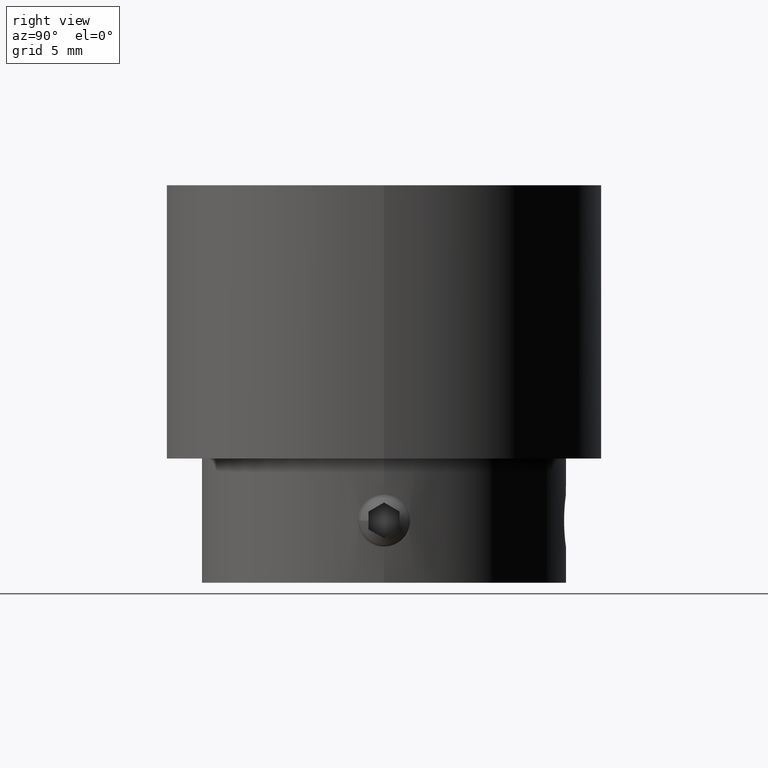
[diagram: clean part render]
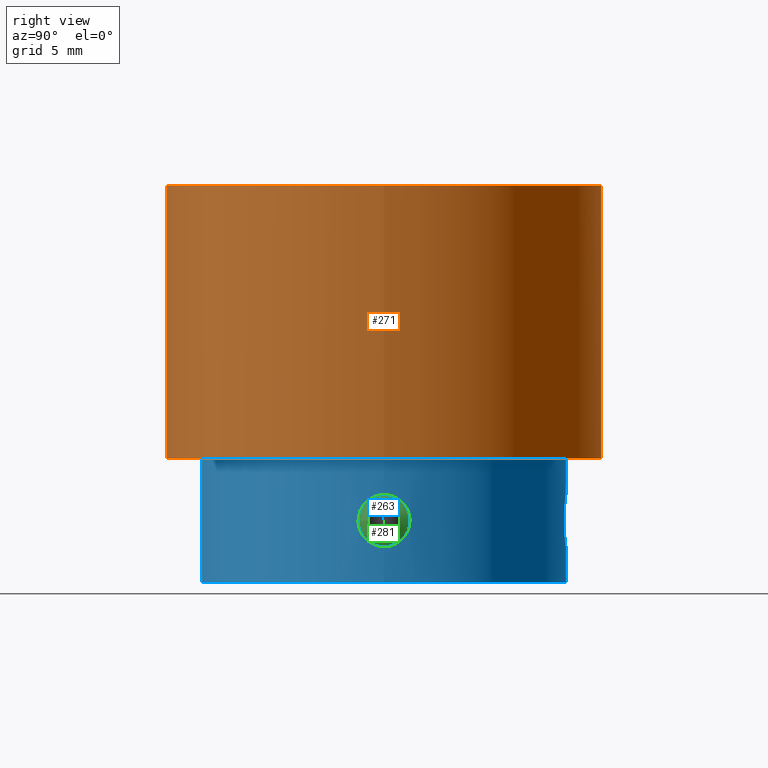
[diagram: same view with three faces highlighted in distinct colors, each labeled with its STEP entity id]
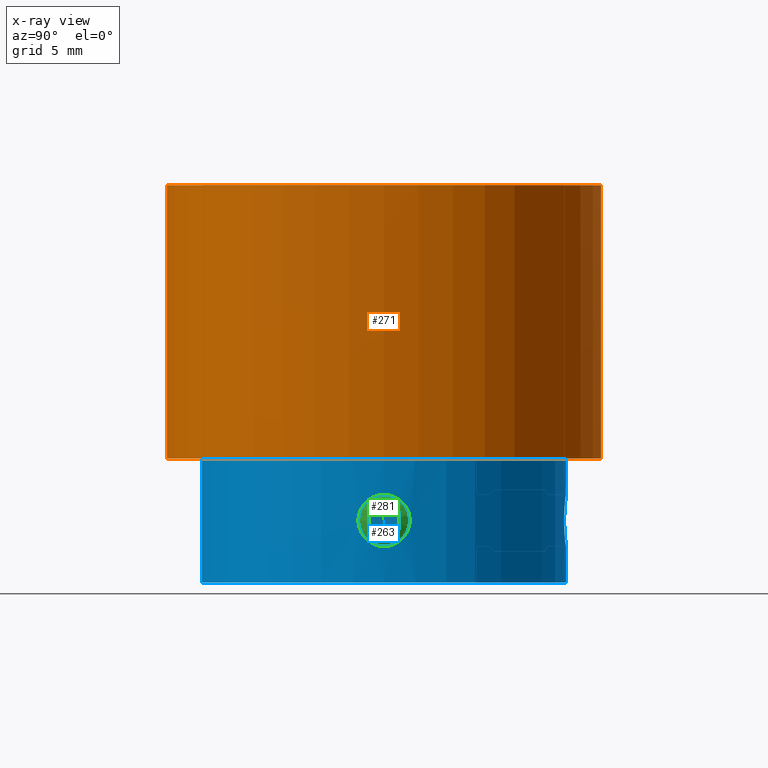
[diagram: x-ray of the same camera — body ghosted, the three highlighted faces saturated]
A machine part, right view with three faces highlighted in distinct colors.
The next image is the same camera in x-ray (body ghosted, the three faces saturated) — at least one of them is partly hidden behind the body in this view.
Their STEP definitions:

[orange] entity #271 — the highlighted cylindrical surface (bore or boss wall) has radius 17.5 mm, axis along (-0, 0, -1).
#271 = ADVANCED_FACE( '', ( #332, #333 ), #334, .T. );
#332 = FACE_OUTER_BOUND( '', #424, .T. );
#333 = FACE_OUTER_BOUND( '', #425, .T. );
#334 = CYLINDRICAL_SURFACE( '', #426, 17.5000000000000 );
#424 = EDGE_LOOP( '', ( #532 ) );
#425 = EDGE_LOOP( '', ( #533 ) );
#426 = AXIS2_PLACEMENT_3D( '', #534, #535, #536 );
#532 = ORIENTED_EDGE( '', *, *, #714, .T. );
#533 = ORIENTED_EDGE( '', *, *, #715, .F. );
#534 = CARTESIAN_POINT( '', ( 0.000000000000000, 0.000000000000000, -22.0000000000000 ) );
#535 = DIRECTION( '', ( -0.000000000000000, 0.000000000000000, -1.00000000000000 ) );
#536 = DIRECTION( '', ( 1.00000000000000, 0.000000000000000, 0.000000000000000 ) );
#714 = EDGE_CURVE( '', #782, #782, #783, .T. );
#715 = EDGE_CURVE( '', #784, #784, #785, .T. );
#782 = VERTEX_POINT( '', #1106 );
#783 = CIRCLE( '', #1107, 17.5000000000000 );
#784 = VERTEX_POINT( '', #1108 );
#785 = CIRCLE( '', #1109, 17.5000000000000 );
#1106 = CARTESIAN_POINT( '', ( 17.5000000000000, 0.000000000000000, -22.0000000000000 ) );
#1107 = AXIS2_PLACEMENT_3D( '', #1288, #1289, #1290 );
#1108 = CARTESIAN_POINT( '', ( 17.5000000000000, 0.000000000000000, 0.000000000000000 ) );
#1109 = AXIS2_PLACEMENT_3D( '', #1291, #1292, #1293 );
#1288 = CARTESIAN_POINT( '', ( 0.000000000000000, 0.000000000000000, -22.0000000000000 ) );
#1289 = DIRECTION( '', ( 0.000000000000000, 0.000000000000000, 1.00000000000000 ) );
#1290 = DIRECTION( '', ( 1.00000000000000, 0.000000000000000, 0.000000000000000 ) );
#1291 = CARTESIAN_POINT( '', ( 0.000000000000000, 0.000000000000000, 0.000000000000000 ) );
#1292 = DIRECTION( '', ( 0.000000000000000, 0.000000000000000, 1.00000000000000 ) );
#1293 = DIRECTION( '', ( 1.00000000000000, 0.000000000000000, 0.000000000000000 ) );

[blue] entity #263 — the highlighted cylindrical surface (bore or boss wall) has radius 14.65 mm, axis along (-0, 0, -1).
#263 = ADVANCED_FACE( '', ( #304, #305, #306, #307 ), #308, .T. );
#304 = FACE_BOUND( '', #396, .T. );
#305 = FACE_OUTER_BOUND( '', #397, .T. );
#306 = FACE_BOUND( '', #398, .T. );
#307 = FACE_OUTER_BOUND( '', #399, .T. );
#308 = CYLINDRICAL_SURFACE( '', #400, 14.6500000000000 );
#396 = EDGE_LOOP( '', ( #488 ) );
#397 = EDGE_LOOP( '', ( #489 ) );
#398 = EDGE_LOOP( '', ( #490 ) );
#399 = EDGE_LOOP( '', ( #491 ) );
#400 = AXIS2_PLACEMENT_3D( '', #492, #493, #494 );
#488 = ORIENTED_EDGE( '', *, *, #704, .F. );
#489 = ORIENTED_EDGE( '', *, *, #705, .T. );
#490 = ORIENTED_EDGE( '', *, *, #706, .F. );
#491 = ORIENTED_EDGE( '', *, *, #707, .T. );
#492 = CARTESIAN_POINT( '', ( 0.000000000000000, 0.000000000000000, -32.0000000000000 ) );
#493 = DIRECTION( '', ( -0.000000000000000, 0.000000000000000, -1.00000000000000 ) );
#494 = DIRECTION( '', ( 1.00000000000000, 0.000000000000000, 0.000000000000000 ) );
#704 = EDGE_CURVE( '', #762, #762, #763, .T. );
#705 = EDGE_CURVE( '', #764, #764, #765, .T. );
#706 = EDGE_CURVE( '', #766, #766, #767, .T. );
#707 = EDGE_CURVE( '', #768, #768, #769, .F. );
#762 = VERTEX_POINT( '', #862 );
#763 = B_SPLINE_CURVE_WITH_KNOTS( '', 3, ( #863, #864, #865, #866, #867, #868, #869, #870, #871, #872, #873, #874, #875, #876, #877, #878, #879, #880, #881, #882, #883, #884, #885, #886, #887, #888, #889, #890, #891, #892, #893, #894, #895, #896, #897, #898, #899, #900, #901, #902, #903, #904, #905, #906, #907, #908, #909, #910, #911, #912, #913, #914, #915, #916, #917, #918 ), .UNSPECIFIED., .T., .F., ( 2, 2, 2, 2, 2, 2, 2, 2, 2, 2, 2, 2, 2, 2, 2, 2, 2, 2, 2, 2, 2, 2, 2, 2, 2, 2, 2, 2, 2, 2 ), ( -0.000821676350584550, 0.000000000000000, 0.000410838175292270, 0.000821676350584540, 0.00123251452587681, 0.00164335270116908, 0.00246502905175362, 0.00328670540233816, 0.00369754357763043, 0.00410838175292270, 0.00451921992821497, 0.00493005810350724, 0.00534089627879951, 0.00575173445409178, 0.00616257262938405, 0.00657341080467632, 0.00739508715526086, 0.00780592533055314, 0.00821676350584541, 0.00862760168113768, 0.00903843985642995, 0.00944927803172222, 0.00986011620701449, 0.0102709543823068, 0.0106817925575990, 0.0110926307328913, 0.0115034689081836, 0.0123251452587681, 0.0131468216093527, 0.0135576597846449 ), .UNSPECIFIED. );
#764 = VERTEX_POINT( '', #919 );
#765 = CIRCLE( '', #920, 14.6500000000000 );
#766 = VERTEX_POINT( '', #921 );
#767 = B_SPLINE_CURVE_WITH_KNOTS( '', 3, ( #922, #923, #924, #925, #926, #927, #928, #929, #930, #931, #932, #933, #934, #935, #936, #937, #938, #939, #940, #941, #942, #943, #944, #945, #946, #947, #948, #949, #950, #951, #952, #953, #954, #955, #956, #957, #958, #959, #960, #961, #962, #963, #964, #965, #966, #967, #968, #969, #970, #971, #972, #973, #974, #975, #976, #977 ), .UNSPECIFIED., .T., .F., ( 2, 2, 2, 2, 2, 2, 2, 2, 2, 2, 2, 2, 2, 2, 2, 2, 2, 2, 2, 2, 2, 2, 2, 2, 2, 2, 2, 2, 2, 2 ), ( -0.000821676350584553, 0.000000000000000, 0.000410838175292266, 0.000821676350584532, 0.00123251452587680, 0.00164335270116906, 0.00246502905175360, 0.00328670540233813, 0.00369754357763040, 0.00410838175292267, 0.00451921992821494, 0.00493005810350722, 0.00534089627879949, 0.00575173445409176, 0.00616257262938403, 0.00657341080467630, 0.00739508715526085, 0.00780592533055312, 0.00821676350584539, 0.00862760168113766, 0.00903843985642993, 0.00944927803172220, 0.00986011620701448, 0.0102709543823067, 0.0106817925575990, 0.0110926307328913, 0.0115034689081836, 0.0123251452587681, 0.0131468216093527, 0.0135576597846449 ), .UNSPECIFIED. );
#768 = VERTEX_POINT( '', #978 );
#769 = CIRCLE( '', #979, 14.6500000000000 );
#862 = CARTESIAN_POINT( '', ( -0.243478406430909, 14.6479765928814, -24.9141624546475 ) );
#863 = CARTESIAN_POINT( '', ( -0.519418364710327, 14.6433899238021, -24.9463727394141 ) );
#864 = CARTESIAN_POINT( '', ( -0.105508427291202, 14.6502699274211, -24.8980573122643 ) );
#865 = CARTESIAN_POINT( '', ( 0.0317397346344909, 14.6506021199626, -24.8957755457430 ) );
#866 = CARTESIAN_POINT( '', ( 0.304850898942806, 14.6474644842587, -24.9177334718962 ) );
#867 = CARTESIAN_POINT( '', ( 0.442197359134204, 14.6439245500962, -24.9424726951000 ) );
#868 = CARTESIAN_POINT( '', ( 0.707057397646882, 14.6335277554583, -25.0178226741113 ) );
#869 = CARTESIAN_POINT( '', ( 0.834337503996029, 14.6267349898457, -25.0679747872220 ) );
#870 = CARTESIAN_POINT( '', ( 1.07872740959252, 14.6107440847325, -25.1930169704233 ) );
#871 = CARTESIAN_POINT( '', ( 1.19615882141795, 14.6014828669101, -25.2685496164717 ) );
#872 = CARTESIAN_POINT( '', ( 1.51795734395931, 14.5727381386209, -25.5232905063535 ) );
#873 = CARTESIAN_POINT( '', ( 1.70028944801077, 14.5516169365638, -25.7375698224308 ) );
#874 = CARTESIAN_POINT( '', ( 1.96680097547192, 14.5179968865677, -26.2148833951973 ) );
#875 = CARTESIAN_POINT( '', ( 2.05375641781997, 14.5053654337650, -26.4829811950649 ) );
#876 = CARTESIAN_POINT( '', ( 2.10167842108939, 14.4984726182459, -26.8915851420446 ) );
#877 = CARTESIAN_POINT( '', ( 2.10425247930975, 14.4980945518212, -27.0315952989257 ) );
#878 = CARTESIAN_POINT( '', ( 2.08219835797159, 14.5012783618648, -27.3054942841623 ) );
#879 = CARTESIAN_POINT( '', ( 2.05795019636429, 14.5047847598242, -27.4402567247901 ) );
#880 = CARTESIAN_POINT( '', ( 1.98278229079199, 14.5152510941722, -27.7053788923411 ) );
#881 = CARTESIAN_POINT( '', ( 1.93173107023037, 14.5222195949914, -27.8349386695447 ) );
#882 = CARTESIAN_POINT( '', ( 1.80710964418293, 14.5382530459043, -28.0784536353017 ) );
#883 = CARTESIAN_POINT( '', ( 1.73298386881928, 14.5473960510101, -28.1941194972935 ) );
#884 = CARTESIAN_POINT( '', ( 1.56127958764008, 14.5668243280321, -28.4112265986094 ) );
#885 = CARTESIAN_POINT( '', ( 1.46618019280933, 14.5768217899481, -28.5096358634330 ) );
#886 = CARTESIAN_POINT( '', ( 1.25810840185989, 14.5962522964925, -28.6869641511067 ) );
#887 = CARTESIAN_POINT( '', ( 1.14372449177842, 14.6057819254927, -28.7665740856300 ) );
#888 = CARTESIAN_POINT( '', ( 0.903718623746249, 14.6225942984560, -28.9005742190736 ) );
#889 = CARTESIAN_POINT( '', ( 0.778395101863427, 14.6298907933326, -28.9552406531888 ) );
#890 = CARTESIAN_POINT( '', ( 0.517089737823087, 14.6414555889256, -29.0399713599767 ) );
#891 = CARTESIAN_POINT( '', ( 0.380402973195521, 14.6456934817792, -29.0698035243122 ) );
#892 = CARTESIAN_POINT( '', ( -0.0280691412506341, 14.6525044978767, -29.1176364958120 ) );
#893 = CARTESIAN_POINT( '', ( -0.309383957449192, 14.6491039570944, -29.0950452108861 ) );
#894 = CARTESIAN_POINT( '', ( -0.704425427493390, 14.6336479085641, -28.9830577486036 ) );
#895 = CARTESIAN_POINT( '', ( -0.833603625909540, 14.6267818831057, -28.9323896417995 ) );
#896 = CARTESIAN_POINT( '', ( -1.07919452186856, 14.6107146452542, -28.8067550793709 ) );
#897 = CARTESIAN_POINT( '', ( -1.19421785315003, 14.6016430815121, -28.7327988702013 ) );
#898 = CARTESIAN_POINT( '', ( -1.40911404048712, 14.5824735412602, -28.5630565652769 ) );
#899 = CARTESIAN_POINT( '', ( -1.50967863345884, 14.5722804351165, -28.4661630135471 ) );
#900 = CARTESIAN_POINT( '', ( -1.68734763786873, 14.5527778999399, -28.2576253446851 ) );
#901 = CARTESIAN_POINT( '', ( -1.76544861792705, 14.5433930683319, -28.1454898091186 ) );
#902 = CARTESIAN_POINT( '', ( -1.89989445048148, 14.5264411278046, -27.9051832976612 ) );
#903 = CARTESIAN_POINT( '', ( -1.95549701017002, 14.5189650063005, -27.7776574737393 ) );
#904 = CARTESIAN_POINT( '', ( -2.03986980178060, 14.5073513986098, -27.5173498768049 ) );
#905 = CARTESIAN_POINT( '', ( -2.06943123725237, 14.5031107804122, -27.3830243392548 ) );
#906 = CARTESIAN_POINT( '', ( -2.10183641243854, 14.4984499740480, -27.1074103604170 ) );
#907 = CARTESIAN_POINT( '', ( -2.10425426869887, 14.4980941585357, -26.9702274352413 ) );
#908 = CARTESIAN_POINT( '', ( -2.08254697933814, 14.5012281664676, -26.6970635185400 ) );
#909 = CARTESIAN_POINT( '', ( -2.05790365498903, 14.5047912325208, -26.5595816913224 ) );
#910 = CARTESIAN_POINT( '', ( -1.98283466956351, 14.5152438086795, -26.2948032806283 ) );
#911 = CARTESIAN_POINT( '', ( -1.93281118596845, 14.5220764735504, -26.1674720128793 ) );
#912 = CARTESIAN_POINT( '', ( -1.80791811846585, 14.5381531241480, -25.9228305579590 ) );
#913 = CARTESIAN_POINT( '', ( -1.73252381881398, 14.5474445468402, -25.8054009324820 ) );
#914 = CARTESIAN_POINT( '', ( -1.47815084997175, 14.5762373941055, -25.4834602134402 ) );
#915 = CARTESIAN_POINT( '', ( -1.26401065179807, 14.5973272921311, -25.3008819653575 ) );
#916 = CARTESIAN_POINT( '', ( -0.786907696629095, 14.6308052846875, -25.0339121839317 ) );
#917 = CARTESIAN_POINT( '', ( -0.519418364710327, 14.6433899238021, -24.9463727394141 ) );
#918 = CARTESIAN_POINT( '', ( -0.105508427291202, 14.6502699274211, -24.8980573122643 ) );
#919 = CARTESIAN_POINT( '', ( 14.6500000000000, 0.000000000000000, -32.0000000000000 ) );
#920 = AXIS2_PLACEMENT_3D( '', #1270, #1271, #1272 );
#921 = CARTESIAN_POINT( '', ( 14.6479765928814, 0.243478406430910, -24.9141624546475 ) );
#922 = CARTESIAN_POINT( '', ( 14.6433899238021, 0.519418364710332, -24.9463727394140 ) );
#923 = CARTESIAN_POINT( '', ( 14.6502699274211, 0.105508427291203, -24.8980573122643 ) );
#924 = CARTESIAN_POINT( '', ( 14.6506021199626, -0.0317397346344901, -24.8957755457430 ) );
#925 = CARTESIAN_POINT( '', ( 14.6474644842587, -0.304850898942805, -24.9177334718962 ) );
#926 = CARTESIAN_POINT( '', ( 14.6439245500962, -0.442197359134203, -24.9424726951000 ) );
#927 = CARTESIAN_POINT( '', ( 14.6335277554583, -0.707057397646881, -25.0178226741113 ) );
#928 = CARTESIAN_POINT( '', ( 14.6267349898457, -0.834337503996028, -25.0679747872220 ) );
#929 = CARTESIAN_POINT( '', ( 14.6107440847325, -1.07872740959252, -25.1930169704233 ) );
#930 = CARTESIAN_POINT( '', ( 14.6014828669101, -1.19615882141795, -25.2685496164717 ) );
#931 = CARTESIAN_POINT( '', ( 14.5727381386209, -1.51795734395931, -25.5232905063535 ) );
#932 = CARTESIAN_POINT( '', ( 14.5516169365638, -1.70028944801077, -25.7375698224308 ) );
#933 = CARTESIAN_POINT( '', ( 14.5179968865677, -1.96680097547192, -26.2148833951973 ) );
#934 = CARTESIAN_POINT( '', ( 14.5053654337650, -2.05375641781997, -26.4829811950649 ) );
#935 = CARTESIAN_POINT( '', ( 14.4984726182459, -2.10167842108939, -26.8915851420446 ) );
#936 = CARTESIAN_POINT( '', ( 14.4980945518212, -2.10425247930975, -27.0315952989257 ) );
#937 = CARTESIAN_POINT( '', ( 14.5012783618648, -2.08219835797159, -27.3054942841623 ) );
#938 = CARTESIAN_POINT( '', ( 14.5047847598242, -2.05795019636429, -27.4402567247901 ) );
#939 = CARTESIAN_POINT( '', ( 14.5152510941722, -1.98278229079199, -27.7053788923412 ) );
#940 = CARTESIAN_POINT( '', ( 14.5222195949914, -1.93173107023036, -27.8349386695447 ) );
#941 = CARTESIAN_POINT( '', ( 14.5382530459043, -1.80710964418292, -28.0784536353017 ) );
#942 = CARTESIAN_POINT( '', ( 14.5473960510101, -1.73298386881928, -28.1941194972935 ) );
#943 = CARTESIAN_POINT( '', ( 14.5668243280322, -1.56127958764008, -28.4112265986094 ) );
#944 = CARTESIAN_POINT( '', ( 14.5768217899481, -1.46618019280932, -28.5096358634330 ) );
#945 = CARTESIAN_POINT( '', ( 14.5962522964925, -1.25810840185989, -28.6869641511067 ) );
#946 = CARTESIAN_POINT( '', ( 14.6057819254927, -1.14372449177842, -28.7665740856300 ) );
#947 = CARTESIAN_POINT( '', ( 14.6225942984560, -0.903718623746248, -28.9005742190736 ) );
#948 = CARTESIAN_POINT( '', ( 14.6298907933326, -0.778395101863425, -28.9552406531888 ) );
#949 = CARTESIAN_POINT( '', ( 14.6414555889256, -0.517089737823086, -29.0399713599767 ) );
#950 = CARTESIAN_POINT( '', ( 14.6456934817792, -0.380402973195520, -29.0698035243122 ) );
#951 = CARTESIAN_POINT( '', ( 14.6525044978767, 0.0280691412506365, -29.1176364958120 ) );
#952 = CARTESIAN_POINT( '', ( 14.6491039570944, 0.309383957449193, -29.0950452108861 ) );
#953 = CARTESIAN_POINT( '', ( 14.6336479085641, 0.704425427493392, -28.9830577486036 ) );
#954 = CARTESIAN_POINT( '', ( 14.6267818831057, 0.833603625909542, -28.9323896417995 ) );
#955 = CARTESIAN_POINT( '', ( 14.6107146452542, 1.07919452186856, -28.8067550793709 ) );
#956 = CARTESIAN_POINT( '', ( 14.6016430815121, 1.19421785315003, -28.7327988702013 ) );
#957 = CARTESIAN_POINT( '', ( 14.5824735412602, 1.40911404048713, -28.5630565652769 ) );
#958 = CARTESIAN_POINT( '', ( 14.5722804351165, 1.50967863345884, -28.4661630135471 ) );
#959 = CARTESIAN_POINT( '', ( 14.5527778999399, 1.68734763786873, -28.2576253446851 ) );
#960 = CARTESIAN_POINT( '', ( 14.5433930683319, 1.76544861792705, -28.1454898091186 ) );
#961 = CARTESIAN_POINT( '', ( 14.5264411278047, 1.89989445048148, -27.9051832976612 ) );
#962 = CARTESIAN_POINT( '', ( 14.5189650063005, 1.95549701017003, -27.7776574737393 ) );
#963 = CARTESIAN_POINT( '', ( 14.5073513986098, 2.03986980178060, -27.5173498768049 ) );
#964 = CARTESIAN_POINT( '', ( 14.5031107804122, 2.06943123725237, -27.3830243392547 ) );
#965 = CARTESIAN_POINT( '', ( 14.4984499740480, 2.10183641243854, -27.1074103604170 ) );
#966 = CARTESIAN_POINT( '', ( 14.4980941585357, 2.10425426869887, -26.9702274352413 ) );
#967 = CARTESIAN_POINT( '', ( 14.5012281664676, 2.08254697933814, -26.6970635185400 ) );
#968 = CARTESIAN_POINT( '', ( 14.5047912325208, 2.05790365498903, -26.5595816913224 ) );
#969 = CARTESIAN_POINT( '', ( 14.5152438086795, 1.98283466956351, -26.2948032806283 ) );
#970 = CARTESIAN_POINT( '', ( 14.5220764735504, 1.93281118596845, -26.1674720128793 ) );
#971 = CARTESIAN_POINT( '', ( 14.5381531241480, 1.80791811846585, -25.9228305579590 ) );
#972 = CARTESIAN_POINT( '', ( 14.5474445468402, 1.73252381881398, -25.8054009324820 ) );
#973 = CARTESIAN_POINT( '', ( 14.5762373941055, 1.47815084997175, -25.4834602134402 ) );
#974 = CARTESIAN_POINT( '', ( 14.5973272921311, 1.26401065179807, -25.3008819653575 ) );
#975 = CARTESIAN_POINT( '', ( 14.6308052846875, 0.786907696629094, -25.0339121839317 ) );
#976 = CARTESIAN_POINT( '', ( 14.6433899238021, 0.519418364710332, -24.9463727394140 ) );
#977 = CARTESIAN_POINT( '', ( 14.6502699274211, 0.105508427291203, -24.8980573122643 ) );
#978 = CARTESIAN_POINT( '', ( 14.6500000000000, 0.000000000000000, -22.0000000000000 ) );
#979 = AXIS2_PLACEMENT_3D( '', #1273, #1274, #1275 );
#1270 = CARTESIAN_POINT( '', ( 0.000000000000000, 0.000000000000000, -32.0000000000000 ) );
#1271 = DIRECTION( '', ( 0.000000000000000, 0.000000000000000, 1.00000000000000 ) );
#1272 = DIRECTION( '', ( 1.00000000000000, 0.000000000000000, -0.000000000000000 ) );
#1273 = CARTESIAN_POINT( '', ( 0.000000000000000, 0.000000000000000, -22.0000000000000 ) );
#1274 = DIRECTION( '', ( 0.000000000000000, 0.000000000000000, 1.00000000000000 ) );
#1275 = DIRECTION( '', ( 1.00000000000000, 0.000000000000000, -0.000000000000000 ) );

[green] entity #281 — the highlighted conical surface has half-angle 63.435 deg.
#281 = ADVANCED_FACE( '', ( #344, #345 ), #346, .T. );
#344 = FACE_OUTER_BOUND( '', #436, .T. );
#345 = FACE_BOUND( '', #437, .T. );
#346 = CONICAL_SURFACE( '', #438, 2.50000000000000, 1.10714871779409 );
#436 = EDGE_LOOP( '', ( #552 ) );
#437 = EDGE_LOOP( '', ( #553, #554, #555, #556, #557, #558 ) );
#438 = AXIS2_PLACEMENT_3D( '', #559, #560, #561 );
#552 = ORIENTED_EDGE( '', *, *, #718, .F. );
#553 = ORIENTED_EDGE( '', *, *, #719, .T. );
#554 = ORIENTED_EDGE( '', *, *, #720, .T. );
#555 = ORIENTED_EDGE( '', *, *, #721, .T. );
#556 = ORIENTED_EDGE( '', *, *, #722, .T. );
#557 = ORIENTED_EDGE( '', *, *, #723, .T. );
#558 = ORIENTED_EDGE( '', *, *, #724, .T. );
#559 = CARTESIAN_POINT( '', ( 13.0870595585078, 0.000000000000000, -27.0000000000000 ) );
#560 = DIRECTION( '', ( -1.00000000000000, -0.000000000000000, -0.000000000000000 ) );
#561 = DIRECTION( '', ( 0.000000000000000, -1.00000000000000, 0.000000000000000 ) );
#718 = EDGE_CURVE( '', #790, #790, #791, .T. );
#719 = EDGE_CURVE( '', #792, #793, #794, .T. );
#720 = EDGE_CURVE( '', #793, #795, #796, .T. );
#721 = EDGE_CURVE( '', #795, #797, #798, .T. );
#722 = EDGE_CURVE( '', #797, #799, #800, .F. );
#723 = EDGE_CURVE( '', #799, #801, #802, .T. );
#724 = EDGE_CURVE( '', #801, #792, #803, .T. );
#790 = VERTEX_POINT( '', #1114 );
#791 = CIRCLE( '', #1115, 2.50000000000000 );
#792 = VERTEX_POINT( '', #1116 );
#793 = VERTEX_POINT( '', #1117 );
#794 = B_SPLINE_CURVE_WITH_KNOTS( '', 3, ( #1118, #1119, #1120, #1121, #1122, #1123 ), .UNSPECIFIED., .F., .F., ( 4, 2, 4 ), ( 0.00129322886666107, 0.00202279493422372, 0.00275236100178638 ), .UNSPECIFIED. );
#795 = VERTEX_POINT( '', #1124 );
#796 = B_SPLINE_CURVE_WITH_KNOTS( '', 3, ( #1125, #1126, #1127, #1128, #1129, #1130 ), .UNSPECIFIED., .F., .F., ( 4, 2, 4 ), ( 2.34956166162920E-007, 0.000723983021226004, 0.00144773108628584 ), .UNSPECIFIED. );
#797 = VERTEX_POINT( '', #1131 );
#798 = B_SPLINE_CURVE_WITH_KNOTS( '', 3, ( #1132, #1133, #1134, #1135, #1136, #1137 ), .UNSPECIFIED., .F., .F., ( 4, 2, 4 ), ( 2.34956166162949E-007, 0.000723983021226004, 0.00144773108628585 ), .UNSPECIFIED. );
#799 = VERTEX_POINT( '', #1138 );
#800 = B_SPLINE_CURVE_WITH_KNOTS( '', 3, ( #1139, #1140, #1141, #1142, #1143, #1144 ), .UNSPECIFIED., .F., .F., ( 4, 2, 4 ), ( 0.00129322886666107, 0.00202279493422372, 0.00275236100178638 ), .UNSPECIFIED. );
#801 = VERTEX_POINT( '', #1145 );
#802 = B_SPLINE_CURVE_WITH_KNOTS( '', 3, ( #1146, #1147, #1148, #1149, #1150, #1151 ), .UNSPECIFIED., .F., .F., ( 4, 2, 4 ), ( 2.34956166162920E-007, 0.000723983021226003, 0.00144773108628584 ), .UNSPECIFIED. );
#803 = B_SPLINE_CURVE_WITH_KNOTS( '', 3, ( #1152, #1153, #1154, #1155, #1156, #1157 ), .UNSPECIFIED., .F., .F., ( 4, 2, 4 ), ( 2.34956166162955E-007, 0.000723983021226004, 0.00144773108628584 ), .UNSPECIFIED. );
#1114 = CARTESIAN_POINT( '', ( 13.0870595585078, -2.50000000000000, -27.0000000000000 ) );
#1115 = AXIS2_PLACEMENT_3D( '', #1300, #1301, #1302 );
#1116 = CARTESIAN_POINT( '', ( 13.6153717220208, -1.25000000000000, -27.7216878364870 ) );
#1117 = CARTESIAN_POINT( '', ( 13.6153717220208, -1.25000000000000, -26.2783121635130 ) );
#1118 = CARTESIAN_POINT( '', ( 13.6153717220208, -1.25000000000000, -27.7216878364870 ) );
#1119 = CARTESIAN_POINT( '', ( 13.6745560965667, -1.25000000000000, -27.4849503383034 ) );
#1120 = CARTESIAN_POINT( '', ( 13.7120271288397, -1.25000000000000, -27.2423718736572 ) );
#1121 = CARTESIAN_POINT( '', ( 13.7120919433572, -1.25000000000000, -26.7582975950863 ) );
#1122 = CARTESIAN_POINT( '', ( 13.6740655241797, -1.25000000000000, -26.5130873721472 ) );
#1123 = CARTESIAN_POINT( '', ( 13.6153717220211, -1.25000000000000, -26.2783121635129 ) );
#1124 = CARTESIAN_POINT( '', ( 13.6153717220208, 0.000000000000000, -25.5566243270259 ) );
#1125 = CARTESIAN_POINT( '', ( 13.6153717220208, -1.25000000000000, -26.2783121635130 ) );
#1126 = CARTESIAN_POINT( '', ( 13.6746533001018, -1.04464258962185, -26.1597490073511 ) );
#1127 = CARTESIAN_POINT( '', ( 13.7117176272745, -0.837672393265535, -26.0402547087705 ) );
#1128 = CARTESIAN_POINT( '', ( 13.7123965729507, -0.418400168062404, -25.7981877766857 ) );
#1129 = CARTESIAN_POINT( '', ( 13.6748798060887, -0.206142050132829, -25.6756404951614 ) );
#1130 = CARTESIAN_POINT( '', ( 13.6153717220209, 2.03883893087350E-014, -25.5566243270259 ) );
#1131 = CARTESIAN_POINT( '', ( 13.6153717220208, 1.25000000000000, -26.2783121635130 ) );
#1132 = CARTESIAN_POINT( '', ( 13.6153717220208, -3.80820095937140E-016, -25.5566243270259 ) );
#1133 = CARTESIAN_POINT( '', ( 13.6746533001018, 0.205357410378149, -25.6751874831878 ) );
#1134 = CARTESIAN_POINT( '', ( 13.7117176272745, 0.412327606734465, -25.7946817817684 ) );
#1135 = CARTESIAN_POINT( '', ( 13.7123965729507, 0.831599831937596, -26.0367487138532 ) );
#1136 = CARTESIAN_POINT( '', ( 13.6748798060887, 1.04385794986717, -26.1592959953775 ) );
#1137 = CARTESIAN_POINT( '', ( 13.6153717220209, 1.25000000000002, -26.2783121635130 ) );
#1138 = CARTESIAN_POINT( '', ( 13.6153717220208, 1.25000000000000, -27.7216878364870 ) );
#1139 = CARTESIAN_POINT( '', ( 13.6153717220208, 1.25000000000000, -27.7216878364870 ) );
#1140 = CARTESIAN_POINT( '', ( 13.6745560965667, 1.25000000000000, -27.4849503383034 ) );
#1141 = CARTESIAN_POINT( '', ( 13.7120271288397, 1.25000000000000, -27.2423718736572 ) );
#1142 = CARTESIAN_POINT( '', ( 13.7120919433572, 1.25000000000000, -26.7582975950863 ) );
#1143 = CARTESIAN_POINT( '', ( 13.6740655241797, 1.25000000000000, -26.5130873721472 ) );
#1144 = CARTESIAN_POINT( '', ( 13.6153717220211, 1.25000000000000, -26.2783121635129 ) );
#1145 = CARTESIAN_POINT( '', ( 13.6153717220208, -2.25229557290152E-016, -28.4433756729741 ) );
#1146 = CARTESIAN_POINT( '', ( 13.6153717220208, 1.25000000000000, -27.7216878364870 ) );
#1147 = CARTESIAN_POINT( '', ( 13.6746533001018, 1.04464258962185, -27.8402509926489 ) );
#1148 = CARTESIAN_POINT( '', ( 13.7117176272745, 0.837672393265534, -27.9597452912295 ) );
#1149 = CARTESIAN_POINT( '', ( 13.7123965729507, 0.418400168062404, -28.2018122233142 ) );
#1150 = CARTESIAN_POINT( '', ( 13.6748798060887, 0.206142050132829, -28.3243595048386 ) );
#1151 = CARTESIAN_POINT( '', ( 13.6153717220209, -2.04383299246275E-014, -28.4433756729741 ) );
#1152 = CARTESIAN_POINT( '', ( 13.6153717220208, 2.47399913704463E-016, -28.4433756729741 ) );
#1153 = CARTESIAN_POINT( '', ( 13.6746533001018, -0.205357410378149, -28.3248125168122 ) );
#1154 = CARTESIAN_POINT( '', ( 13.7117176272745, -0.412327606734465, -28.2053182182316 ) );
#1155 = CARTESIAN_POINT( '', ( 13.7123965729507, -0.831599831937596, -27.9632512861468 ) );
#1156 = CARTESIAN_POINT( '', ( 13.6748798060887, -1.04385794986717, -27.8407040046225 ) );
#1157 = CARTESIAN_POINT( '', ( 13.6153717220209, -1.25000000000002, -27.7216878364870 ) );
#1300 = CARTESIAN_POINT( '', ( 13.0870595585078, 0.000000000000000, -27.0000000000000 ) );
#1301 = DIRECTION( '', ( -1.00000000000000, -0.000000000000000, 0.000000000000000 ) );
#1302 = DIRECTION( '', ( 0.000000000000000, -1.00000000000000, 0.000000000000000 ) );